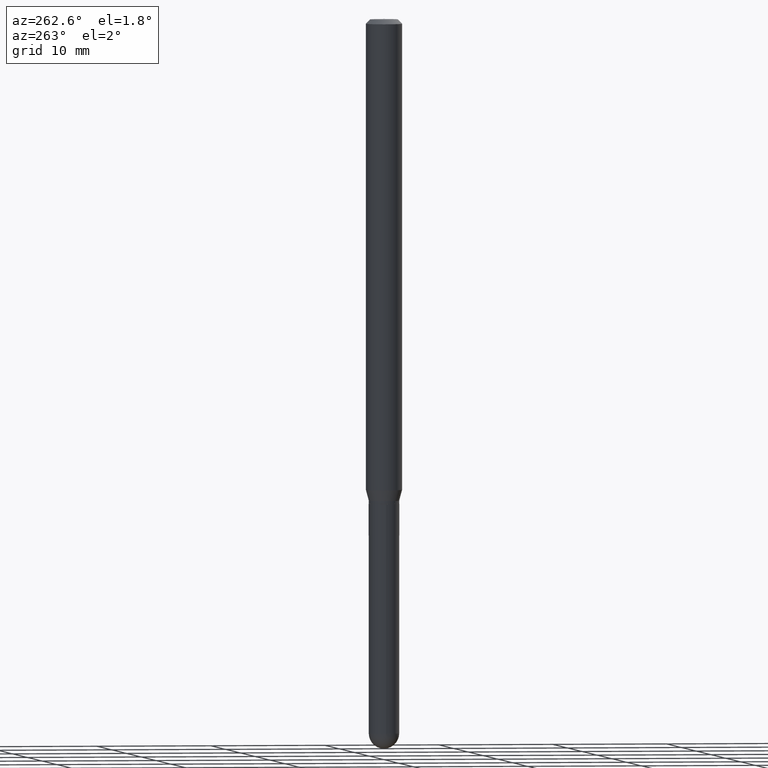
[diagram: clean part render]
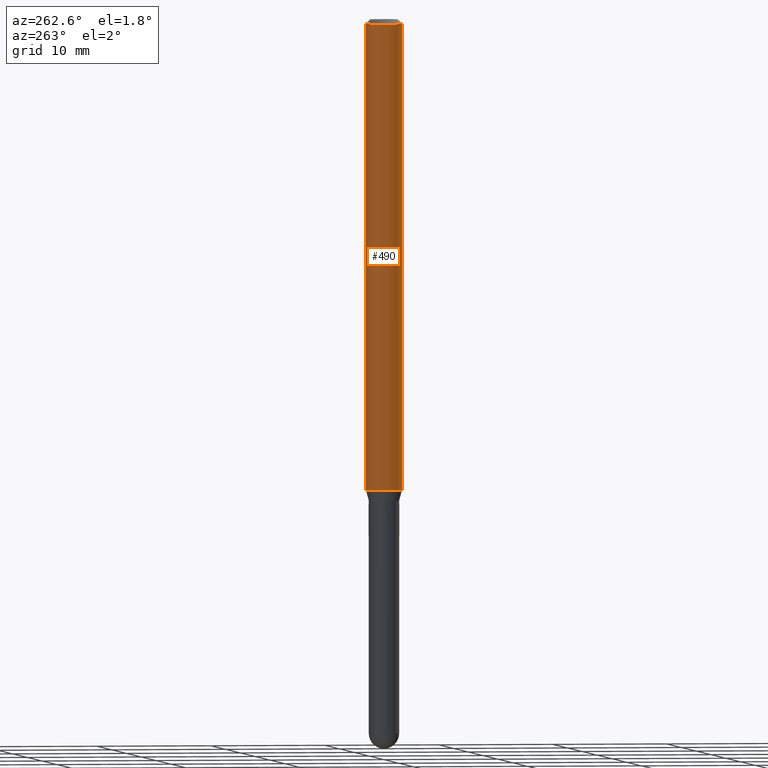
[diagram: same view with one face highlighted and labeled with its STEP entity id]
A machine part, auxiliary view. The second image highlights one B-rep face of the part: STEP entity #490.
In plain terms, the highlighted cylindrical surface (edge-blend (fillet) strip) has radius 1.5875 mm, axis along (-0, 0, 1).
Its self-contained STEP definition (entity closure, byte-faithful):
#12 = EDGE_CURVE ( 'NONE', #283, #255, #172, .T. ) ;
#42 = EDGE_CURVE ( 'NONE', #342, #452, #103, .T. ) ;
#83 = DIRECTION ( 'NONE',  ( -6.982962677686265922E-15, -1.000000000000000000, 3.491630991862036470E-15 ) ) ;
#99 = CARTESIAN_POINT ( 'NONE',  ( 4.440892098501022564E-16, 0.06249999999999995143, -0.01500000000000022669 ) ) ;
#103 = LINE ( 'NONE', #369, #281 ) ;
#115 = ORIENTED_EDGE ( 'NONE', *, *, #12, .T. ) ;
#127 = EDGE_CURVE ( 'NONE', #452, #255, #461, .T. ) ;
#152 = CIRCLE ( 'NONE', #355, 0.06250000000000000000 ) ;
#170 = CARTESIAN_POINT ( 'NONE',  ( 4.440892098501021578E-16, 0.06249999999999439337, -1.612679491924312591 ) ) ;
#172 = LINE ( 'NONE', #473, #419 ) ;
#190 = CARTESIAN_POINT ( 'NONE',  ( 3.943588863410019846E-29, -5.630881693943251588E-15, -1.612679491924312369 ) ) ;
#194 = DIRECTION ( 'NONE',  ( -6.982962677686265922E-15, -1.000000000000000000, 4.370956789862821150E-15 ) ) ;
#204 = EDGE_CURVE ( 'NONE', #342, #283, #152, .T. ) ;
#230 = DIRECTION ( 'NONE',  ( -2.445364304040584784E-29, 3.491630991862036470E-15, 1.000000000000000000 ) ) ;
#233 = CYLINDRICAL_SURFACE ( 'NONE', #292, 0.06250000000000000000 ) ;
#255 = VERTEX_POINT ( 'NONE', #491 ) ;
#256 = DIRECTION ( 'NONE',  ( -2.445364304040584503E-29, 3.491630991862036470E-15, 1.000000000000000000 ) ) ;
#264 = DIRECTION ( 'NONE',  ( -6.982962677686265922E-15, -1.000000000000000000, 3.483106191921935554E-15 ) ) ;
#274 = CARTESIAN_POINT ( 'NONE',  ( 0.000000000000000000, 0.000000000000000000, 0.000000000000000000 ) ) ;
#281 = VECTOR ( 'NONE', #256, 39.37007874015748143 ) ;
#283 = VERTEX_POINT ( 'NONE', #494 ) ;
#292 = AXIS2_PLACEMENT_3D ( 'NONE', #274, #360, #83 ) ;
#316 = AXIS2_PLACEMENT_3D ( 'NONE', #438, #230, #264 ) ;
#319 = FACE_OUTER_BOUND ( 'NONE', #492, .T. ) ;
#340 = DIRECTION ( 'NONE',  ( -2.445364304040584503E-29, 3.491630991862036470E-15, 1.000000000000000000 ) ) ;
#342 = VERTEX_POINT ( 'NONE', #170 ) ;
#353 = ORIENTED_EDGE ( 'NONE', *, *, #127, .F. ) ;
#355 = AXIS2_PLACEMENT_3D ( 'NONE', #190, #508, #194 ) ;
#360 = DIRECTION ( 'NONE',  ( -2.445364304040584784E-29, 3.491630991862036470E-15, 1.000000000000000000 ) ) ;
#363 = ORIENTED_EDGE ( 'NONE', *, *, #42, .F. ) ;
#369 = CARTESIAN_POINT ( 'NONE',  ( 4.440892098500625669E-16, 0.06250000000000000000, -2.182269369913772794E-16 ) ) ;
#416 = ORIENTED_EDGE ( 'NONE', *, *, #204, .T. ) ;
#419 = VECTOR ( 'NONE', #340, 39.37007874015748143 ) ;
#438 = CARTESIAN_POINT ( 'NONE',  ( 3.668046456060879803E-31, -5.237446487793057096E-17, -0.01500000000000000812 ) ) ;
#452 = VERTEX_POINT ( 'NONE', #99 ) ;
#461 = CIRCLE ( 'NONE', #316, 0.06250000000000000000 ) ;
#473 = CARTESIAN_POINT ( 'NONE',  ( -4.364351673553916201E-16, -0.06250000000000000000, 2.182269369913772794E-16 ) ) ;
#490 = ADVANCED_FACE ( 'NONE', ( #319 ), #233, .T. ) ;
#491 = CARTESIAN_POINT ( 'NONE',  ( -4.364351673553912750E-16, -0.06250000000000005551, -0.01499999999999979128 ) ) ;
#492 = EDGE_LOOP ( 'NONE', ( #363, #416, #115, #353 ) ) ;
#494 = CARTESIAN_POINT ( 'NONE',  ( -4.364351673553520291E-16, -0.06250000000000560663, -1.612679491924311925 ) ) ;
#508 = DIRECTION ( 'NONE',  ( -2.445364304040584784E-29, 3.491630991862036470E-15, 1.000000000000000000 ) ) ;